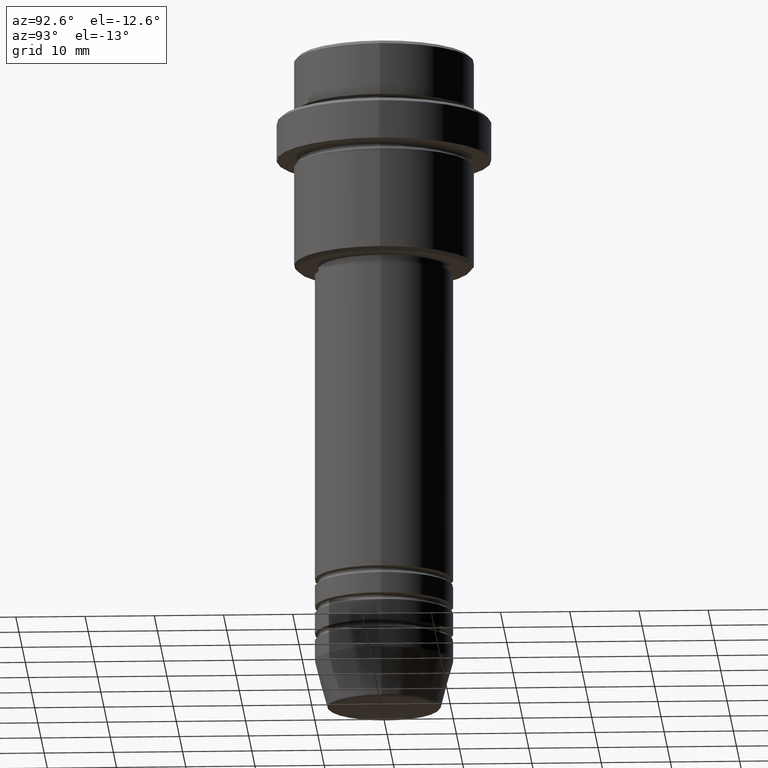
[diagram: clean part render]
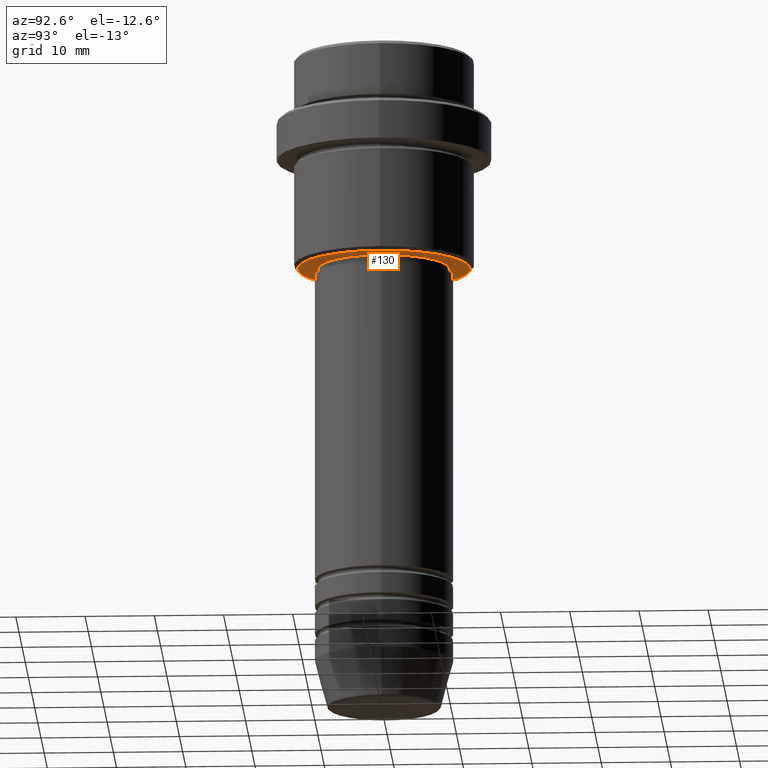
[diagram: same view with one face highlighted and labeled with its STEP entity id]
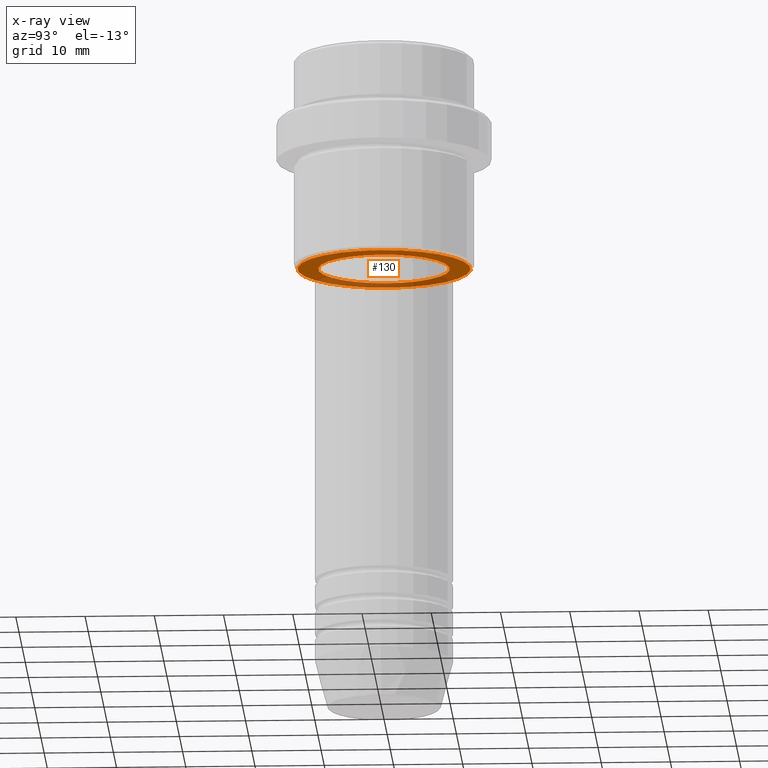
[diagram: x-ray of the same camera — body ghosted, the highlighted face saturated]
A machine part, auxiliary view. The second image highlights one B-rep face of the part: STEP entity #130.
The next image is the same camera in x-ray: the body ghosted, the highlighted face saturated — about 30% of this face is hidden behind the body in this view.
In plain terms, the highlighted planar face has unit normal (0, 0, -1).
Its self-contained STEP definition (entity closure, byte-faithful):
#15 = CIRCLE ( 'NONE', #1248, 9.499999999999996447 ) ;
#54 = CIRCLE ( 'NONE', #792, 12.49999999999998401 ) ;
#68 = DIRECTION ( 'NONE',  ( 0.000000000000000000, 0.000000000000000000, -1.000000000000000000 ) ) ;
#100 = ORIENTED_EDGE ( 'NONE', *, *, #379, .T. ) ;
#109 = VERTEX_POINT ( 'NONE', #1244 ) ;
#115 = DIRECTION ( 'NONE',  ( -0.000000000000000000, -0.000000000000000000, 1.000000000000000000 ) ) ;
#130 = ADVANCED_FACE ( 'NONE', ( #638, #499 ), #1169, .T. ) ;
#140 = AXIS2_PLACEMENT_3D ( 'NONE', #288, #176, #940 ) ;
#158 = CARTESIAN_POINT ( 'NONE',  ( -12.49999999999998401, 1.561424668912874125E-15, -30.99999999999999645 ) ) ;
#176 = DIRECTION ( 'NONE',  ( 0.000000000000000000, 0.000000000000000000, -1.000000000000000000 ) ) ;
#202 = CARTESIAN_POINT ( 'NONE',  ( 0.000000000000000000, 0.000000000000000000, -30.99999999999999645 ) ) ;
#286 = ORIENTED_EDGE ( 'NONE', *, *, #890, .T. ) ;
#288 = CARTESIAN_POINT ( 'NONE',  ( 0.000000000000000000, 13.00000000000000000, -30.99999999999999645 ) ) ;
#379 = EDGE_CURVE ( 'NONE', #1101, #109, #15, .T. ) ;
#408 = DIRECTION ( 'NONE',  ( -1.000000000000000000, 0.000000000000000000, 0.000000000000000000 ) ) ;
#411 = EDGE_LOOP ( 'NONE', ( #497, #100 ) ) ;
#430 = CIRCLE ( 'NONE', #1224, 9.499999999999996447 ) ;
#444 = ORIENTED_EDGE ( 'NONE', *, *, #877, .T. ) ;
#494 = CIRCLE ( 'NONE', #1302, 12.49999999999998401 ) ;
#497 = ORIENTED_EDGE ( 'NONE', *, *, #1371, .T. ) ;
#499 = FACE_BOUND ( 'NONE', #411, .T. ) ;
#561 = DIRECTION ( 'NONE',  ( 1.000000000000000000, 0.000000000000000000, 0.000000000000000000 ) ) ;
#638 = FACE_OUTER_BOUND ( 'NONE', #1175, .T. ) ;
#659 = CARTESIAN_POINT ( 'NONE',  ( 0.000000000000000000, 0.000000000000000000, -30.99999999999999289 ) ) ;
#735 = DIRECTION ( 'NONE',  ( 1.000000000000000000, 0.000000000000000000, 0.000000000000000000 ) ) ;
#792 = AXIS2_PLACEMENT_3D ( 'NONE', #829, #1264, #408 ) ;
#829 = CARTESIAN_POINT ( 'NONE',  ( 0.000000000000000000, 0.000000000000000000, -30.99999999999999645 ) ) ;
#846 = CARTESIAN_POINT ( 'NONE',  ( -9.499999999999996447, 1.163414459189985091E-15, -30.99999999999999289 ) ) ;
#877 = EDGE_CURVE ( 'NONE', #1197, #993, #494, .T. ) ;
#890 = EDGE_CURVE ( 'NONE', #993, #1197, #54, .T. ) ;
#940 = DIRECTION ( 'NONE',  ( -1.000000000000000000, 0.000000000000000000, -0.000000000000000000 ) ) ;
#972 = CARTESIAN_POINT ( 'NONE',  ( 12.49999999999998401, 0.000000000000000000, -30.99999999999999645 ) ) ;
#993 = VERTEX_POINT ( 'NONE', #972 ) ;
#1101 = VERTEX_POINT ( 'NONE', #846 ) ;
#1103 = CARTESIAN_POINT ( 'NONE',  ( 0.000000000000000000, 0.000000000000000000, -30.99999999999999289 ) ) ;
#1169 = PLANE ( 'NONE',  #140 ) ;
#1175 = EDGE_LOOP ( 'NONE', ( #286, #444 ) ) ;
#1197 = VERTEX_POINT ( 'NONE', #158 ) ;
#1224 = AXIS2_PLACEMENT_3D ( 'NONE', #659, #1276, #735 ) ;
#1244 = CARTESIAN_POINT ( 'NONE',  ( 9.499999999999996447, 0.000000000000000000, -30.99999999999999289 ) ) ;
#1248 = AXIS2_PLACEMENT_3D ( 'NONE', #1103, #115, #561 ) ;
#1264 = DIRECTION ( 'NONE',  ( 0.000000000000000000, 0.000000000000000000, -1.000000000000000000 ) ) ;
#1276 = DIRECTION ( 'NONE',  ( -0.000000000000000000, -0.000000000000000000, 1.000000000000000000 ) ) ;
#1302 = AXIS2_PLACEMENT_3D ( 'NONE', #202, #68, #1397 ) ;
#1371 = EDGE_CURVE ( 'NONE', #109, #1101, #430, .T. ) ;
#1397 = DIRECTION ( 'NONE',  ( -1.000000000000000000, 0.000000000000000000, 0.000000000000000000 ) ) ;